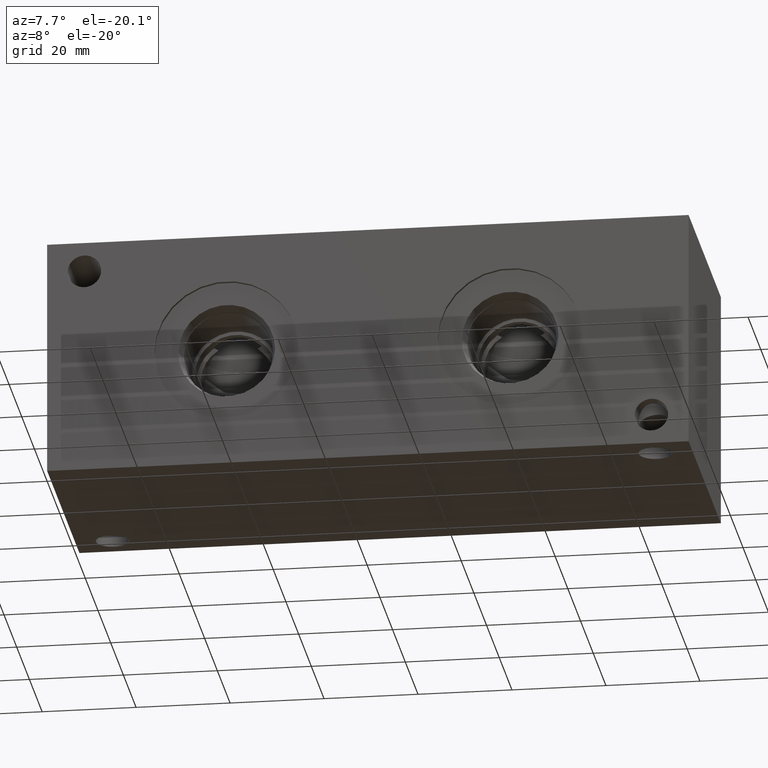
[diagram: clean part render]
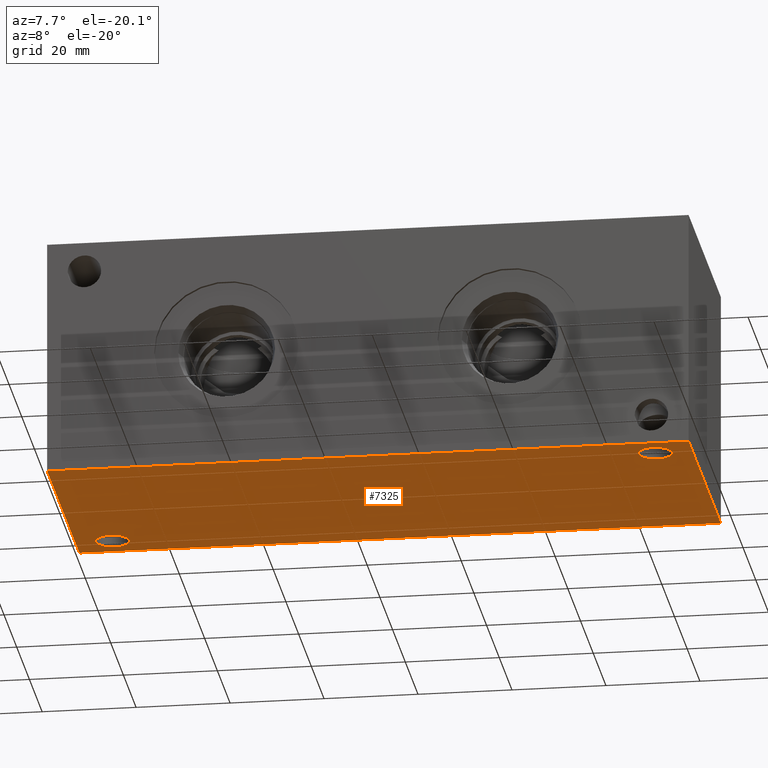
[diagram: same view with one face highlighted and labeled with its STEP entity id]
A machine part, auxiliary view. The second image highlights one B-rep face of the part: STEP entity #7325.
In plain terms, the highlighted planar face has unit normal (0, 0, 1).
Its self-contained STEP definition (entity closure, byte-faithful):
#142=CIRCLE('',#7657,3.5687);
#143=CIRCLE('',#7659,3.5687);
#203=FACE_BOUND('',#1207,.T.);
#204=FACE_BOUND('',#1208,.T.);
#409=PLANE('',#7686);
#784=FACE_OUTER_BOUND('',#1206,.T.);
#1206=EDGE_LOOP('',(#6511,#6512,#6513,#6514));
#1207=EDGE_LOOP('',(#6515));
#1208=EDGE_LOOP('',(#6516));
#1857=LINE('',#12814,#2513);
#1860=LINE('',#12819,#2516);
#1862=LINE('',#12823,#2518);
#1864=LINE('',#12826,#2520);
#2513=VECTOR('',#9021,10.);
#2516=VECTOR('',#9026,10.);
#2518=VECTOR('',#9030,10.);
#2520=VECTOR('',#9034,10.);
#3446=VERTEX_POINT('',#12767);
#3447=VERTEX_POINT('',#12771);
#3459=VERTEX_POINT('',#12812);
#3460=VERTEX_POINT('',#12813);
#3461=VERTEX_POINT('',#12818);
#3462=VERTEX_POINT('',#12822);
#4453=EDGE_CURVE('',#3446,#3446,#142,.T.);
#4455=EDGE_CURVE('',#3447,#3447,#143,.T.);
#4473=EDGE_CURVE('',#3459,#3460,#1857,.T.);
#4476=EDGE_CURVE('',#3461,#3459,#1860,.T.);
#4478=EDGE_CURVE('',#3462,#3461,#1862,.T.);
#4480=EDGE_CURVE('',#3460,#3462,#1864,.T.);
#6511=ORIENTED_EDGE('',*,*,#4480,.F.);
#6512=ORIENTED_EDGE('',*,*,#4473,.F.);
#6513=ORIENTED_EDGE('',*,*,#4476,.F.);
#6514=ORIENTED_EDGE('',*,*,#4478,.F.);
#6515=ORIENTED_EDGE('',*,*,#4453,.T.);
#6516=ORIENTED_EDGE('',*,*,#4455,.T.);
#7325=ADVANCED_FACE('',(#784,#203,#204),#409,.F.);
#7657=AXIS2_PLACEMENT_3D('',#12769,#8965,#8966);
#7659=AXIS2_PLACEMENT_3D('',#12773,#8970,#8971);
#7686=AXIS2_PLACEMENT_3D('',#12828,#9037,#9038);
#8965=DIRECTION('center_axis',(0.,0.,1.));
#8966=DIRECTION('ref_axis',(1.,0.,0.));
#8970=DIRECTION('center_axis',(0.,0.,1.));
#8971=DIRECTION('ref_axis',(1.,0.,0.));
#9021=DIRECTION('',(0.,-1.,0.));
#9026=DIRECTION('',(-1.,0.,0.));
#9030=DIRECTION('',(0.,1.,0.));
#9034=DIRECTION('',(1.,0.,0.));
#9037=DIRECTION('center_axis',(0.,0.,1.));
#9038=DIRECTION('ref_axis',(1.,0.,0.));
#12767=CARTESIAN_POINT('',(4.3561,44.45,0.));
#12769=CARTESIAN_POINT('Origin',(7.9248,44.45,0.));
#12771=CARTESIAN_POINT('',(125.0315,6.35,0.));
#12773=CARTESIAN_POINT('Origin',(128.6002,6.35,0.));
#12812=CARTESIAN_POINT('',(0.,50.8,0.));
#12813=CARTESIAN_POINT('',(0.,0.,0.));
#12814=CARTESIAN_POINT('',(0.,50.8,0.));
#12818=CARTESIAN_POINT('',(136.525,50.8,0.));
#12819=CARTESIAN_POINT('',(136.525,50.8,0.));
#12822=CARTESIAN_POINT('',(136.525,0.,0.));
#12823=CARTESIAN_POINT('',(136.525,0.,0.));
#12826=CARTESIAN_POINT('',(0.,0.,0.));
#12828=CARTESIAN_POINT('Origin',(68.2625,25.4,0.));